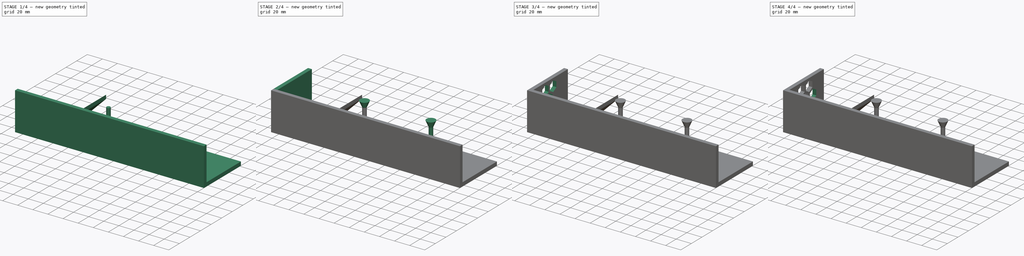
[diagram: build sequence overview — one tinted view per stage of 4, left to right]
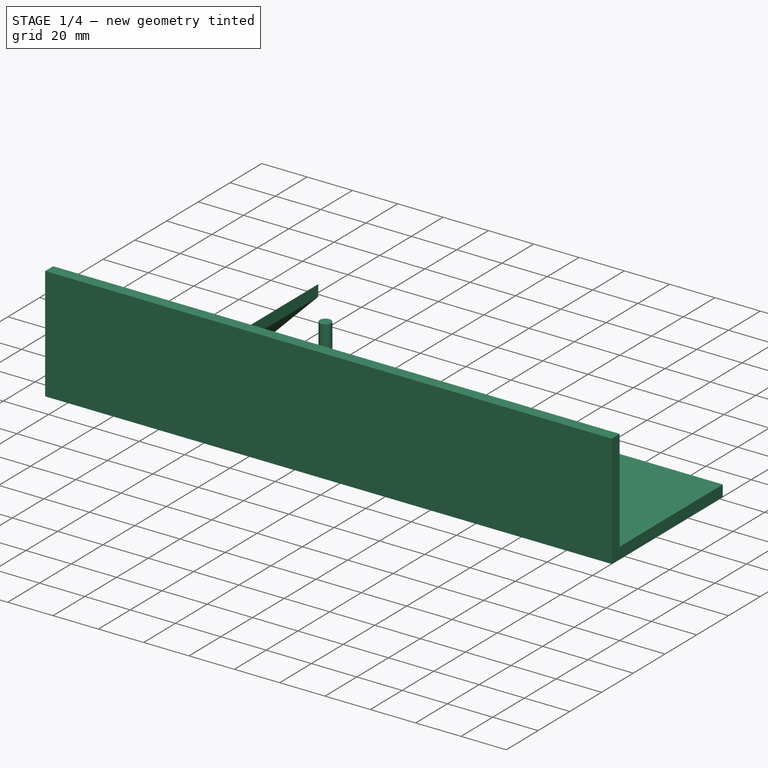
[diagram: stage 1 of 4 — iso view after this stage's code; geometry added in this stage tinted green]
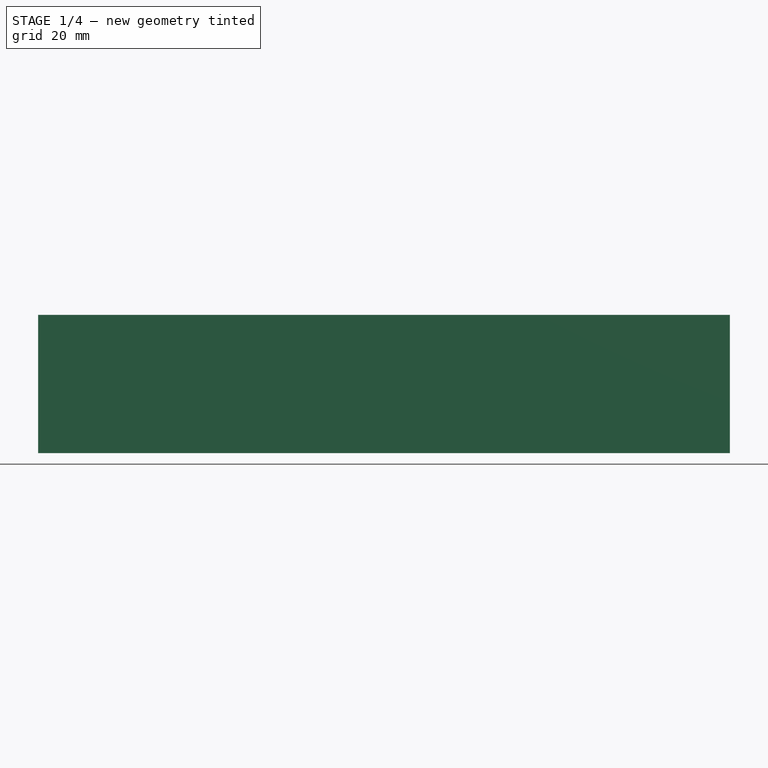
[diagram: stage 1 of 4 — front view after this stage's code; geometry added in this stage tinted green]
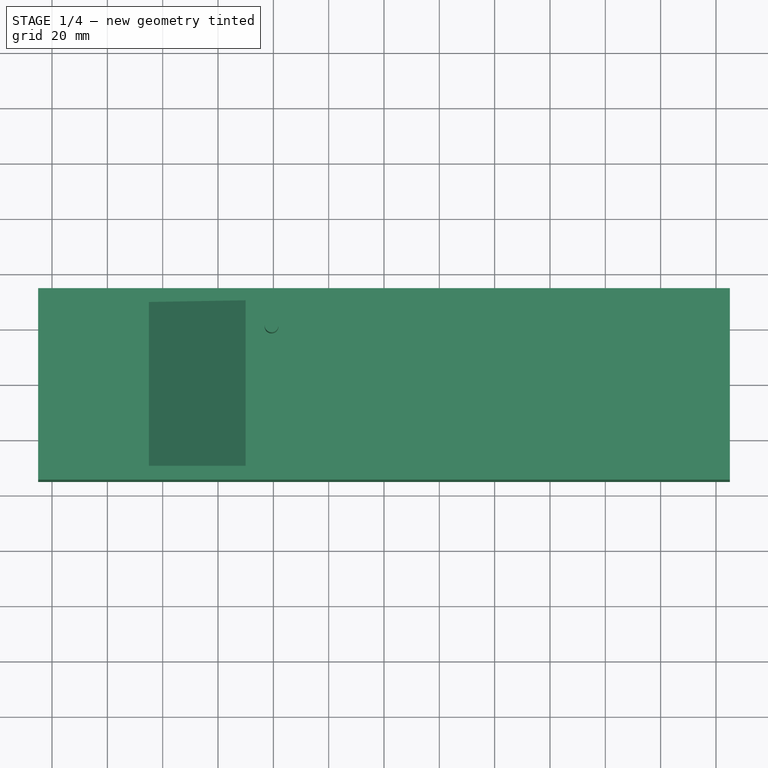
[diagram: stage 1 of 4 — top view after this stage's code; geometry added in this stage tinted green]
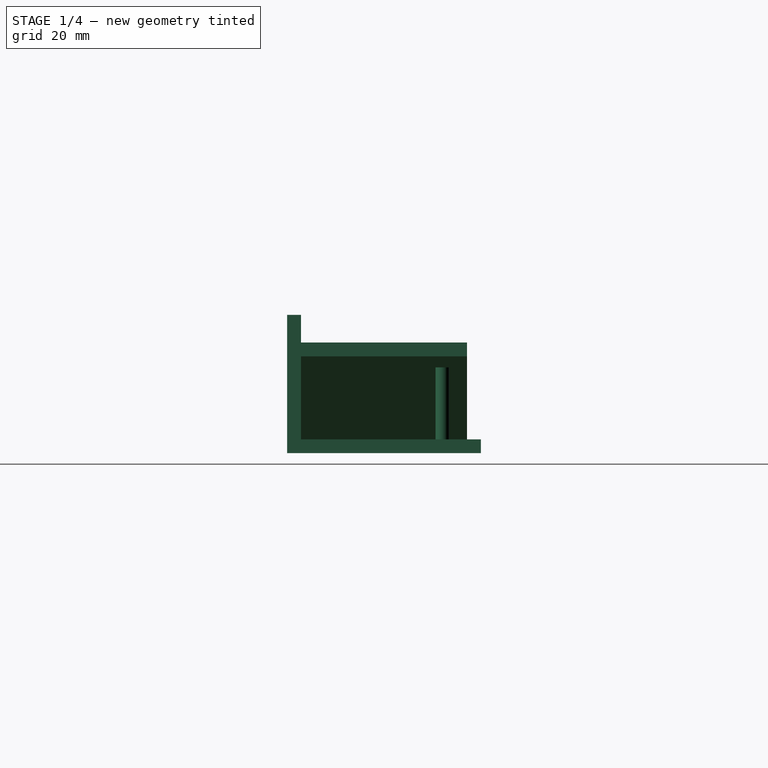
[diagram: stage 1 of 4 — right view after this stage's code; geometry added in this stage tinted green]
FCSTD DOCUMENT  (FreeCAD 0.18.4R)
Label: box_10gig_3dp_mountloft
License: All rights reserved
LicenseURL: http://en.wikipedia.org/wiki/All_rights_reserved
objects: Sketcher::SketchObject×14, PartDesign::Pocket×7, PartDesign::Pad×5, Raytracing::RayFeature×4, App::Part×2, PartDesign::Body×2, PartDesign::LinearPattern×2, App::VRMLObject×1, Part::Feature×1, PartDesign::AdditiveLoft×1, PartDesign::MultiTransform×1, Raytracing::RayProject×1
note: 46 computed .brp shape members not serialized (recipe doc carries the construction recipe); baked Part::Feature solids carry a one-line shape summary decoded from their .brp

FEATURE [App::VRMLObject] multi_smtpa_linear  label="multi-smtpa_linear"
  Placement = pos=(-146.63,77.1112,39.7191) rot=(0,0,1;0rad)
FEATURE [Sketcher::SketchObject] CopySketch
  sketch-geometry (4):
    g0: LineSegment StartX=-125 StartY=35 StartZ=0 EndX=125 EndY=35 EndZ=0
    g1: LineSegment StartX=125 StartY=35 StartZ=0 EndX=125 EndY=-35 EndZ=0
    g2: LineSegment StartX=125 StartY=-35 StartZ=0 EndX=-125 EndY=-35 EndZ=0
    g3: LineSegment StartX=-125 StartY=-35 StartZ=0 EndX=-125 EndY=35 EndZ=0
  constraints (10):
    c: Horizontal(g0)
    c: Vertical(g1)
    c: DistanceX(g3,g1) = 250
    c: Symmetric(g3,g1,g-2)
    c: Symmetric(g0,g3,g-1)
    c: Coincident(g2,g3)
    c: Coincident(g1,g2)
    c: Coincident(g3,g0)
    c: Coincident(g1,g0)
    c: DistanceY(g1,g1) = 70
FEATURE [Raytracing::RayFeature] Body001_View
  Result = <blob: 25648 chars omitted>
  Transparency = 0
FEATURE [Raytracing::RayFeature] Body002_View
  Result = <blob: 18890 chars omitted>
  Transparency = 0
FEATURE [Raytracing::RayFeature] Body003_View
  Result = <blob: 23214 chars omitted>
  Transparency = 0
FEATURE [Part::Feature] Part__Feature  label="˟°1"
  Placement = pos=(-104.545,8.03953e-07,27.6303) rot=(0,1,0;1.5708rad)
  shape: bbox 28.2 x 41.27 x 41.27 mm, 170 faces (baked)
FEATURE [App::Part] _0X28P3_FRAME_HOOK  label="fan"
  Group = -> [Part__Feature]
  Origin = -> Origin004
FEATURE [PartDesign::Pad] Pad  label="base"
  Length = 5
  Length2 = 100
  Profile = -> CopySketch
  Type = 0
FEATURE [Sketcher::SketchObject] Sketch001
  ExternalGeometry = -> [Pad]
  MapMode = 5
  Placement = pos=(0,0,5) rot=(0,0,1;0rad)
  Support = -> [Pad]
  sketch-geometry (4):
    g0: LineSegment StartX=-125 StartY=-35 StartZ=0 EndX=125 EndY=-35 EndZ=0
    g1: LineSegment StartX=125 StartY=-35 StartZ=0 EndX=125 EndY=-30 EndZ=0
    g2: LineSegment StartX=125 StartY=-30 StartZ=0 EndX=-125 EndY=-30 EndZ=0
    g3: LineSegment StartX=-125 StartY=-30 StartZ=0 EndX=-125 EndY=-35 EndZ=0
  constraints (11):
    c: Coincident(g0,g1)
    c: Coincident(g1,g2)
    c: Coincident(g2,g3)
    c: Coincident(g3,g0)
    c: Horizontal(g0)
    c: Horizontal(g2)
    c: Vertical(g1)
    c: Vertical(g3)
    c: Coincident(g0,g-4)
    c: PointOnObject(g1,g-5)
    c: DistanceY(g3,g3) = 5
FEATURE [PartDesign::Pad] Pad003  label="side_wall"
  BaseFeature = -> Pad
  Length = 45
  Length2 = 100
  Profile = -> Sketch001
  Type = 0
FEATURE [Sketcher::SketchObject] Sketch
  MapMode = 5
  Support = -> [XY_Plane]
  sketch-geometry (4):
    g0: LineSegment StartX=-125 StartY=35 StartZ=0 EndX=125 EndY=35 EndZ=0
    g1: LineSegment StartX=125 StartY=35 StartZ=0 EndX=125 EndY=30 EndZ=0
    g2: LineSegment StartX=125 StartY=30 StartZ=0 EndX=-125 EndY=30 EndZ=0
    g3: LineSegment StartX=-125 StartY=30 StartZ=0 EndX=-125 EndY=35 EndZ=0
  constraints (11):
    c: Coincident(g0,g1)
    c: Coincident(g1,g2)
    c: Coincident(g2,g3)
    c: Coincident(g3,g0)
    c: Horizontal(g0)
    c: Vertical(g1)
    c: Vertical(g3)
    c: DistanceY(g1,g1) = 5
    c: DistanceY(g-1,g0) = 35
    c: DistanceX(g2,g-1) = 125
    c: Symmetric(g2,g1,g-2)
FEATURE [PartDesign::Body] Body001  label="lid"
  Group = -> [Sketch]
  Origin = -> Origin
FEATURE [Sketcher::SketchObject] Sketch002
  MapMode = 5
  Placement = pos=(0,-30,0) rot=(0,0.707107,0.707107;3.14159rad)
  Support = -> [Pad003]
  sketch-geometry (4):
    g0: LineSegment StartX=50 StartY=40 StartZ=0 EndX=50 EndY=35 EndZ=0
    g1: LineSegment StartX=50 StartY=35 StartZ=0 EndX=80 EndY=5 EndZ=0
    g2: LineSegment StartX=80 StartY=5 StartZ=0 EndX=85 EndY=5 EndZ=0
    g3: LineSegment StartX=85 StartY=5 StartZ=0 EndX=50 EndY=40 EndZ=0
  constraints (12):
    c: Vertical(g0)
    c: Coincident(g0,g1)
    c: Coincident(g1,g2)
    c: Horizontal(g2)
    c: Coincident(g2,g3)
    c: Coincident(g3,g0)
    c: Equal(g2,g0)
    c: DistanceY(g-1,g1) = 5
    c: Angle(g3,g-1) = 0.785398
    c: DistanceY(g0,g0) = 5
    c: DistanceX(g-1,g1) = 80
    c: DistanceX(g-1,g0) = 50
FEATURE [PartDesign::Pad] Pad004  label="air_guide"
  BaseFeature = -> Pad003
  Length = 60
  Length2 = 100
  Profile = -> Sketch002
  Type = 0
FEATURE [Sketcher::SketchObject] Sketch003
  MapMode = 5
  Placement = pos=(0,0,5) rot=(0,0,1;0rad)
  Support = -> [Pad004]
  sketch-geometry (1):
    g0: Circle CenterX=-40.6316 CenterY=21.1 CenterZ=0 NormalX=0 NormalY=0 NormalZ=1 AngleXU=0 Radius=2.5
  constraints (2):
    c: Diameter(g0) = 5
    c: DistanceY(g-1,g0) = 21.1
FEATURE [PartDesign::Pad] Pad005  label="mount_post"
  BaseFeature = -> Pad004
  Length = 26
  Length2 = 100
  Profile = -> Sketch003
  Type = 0
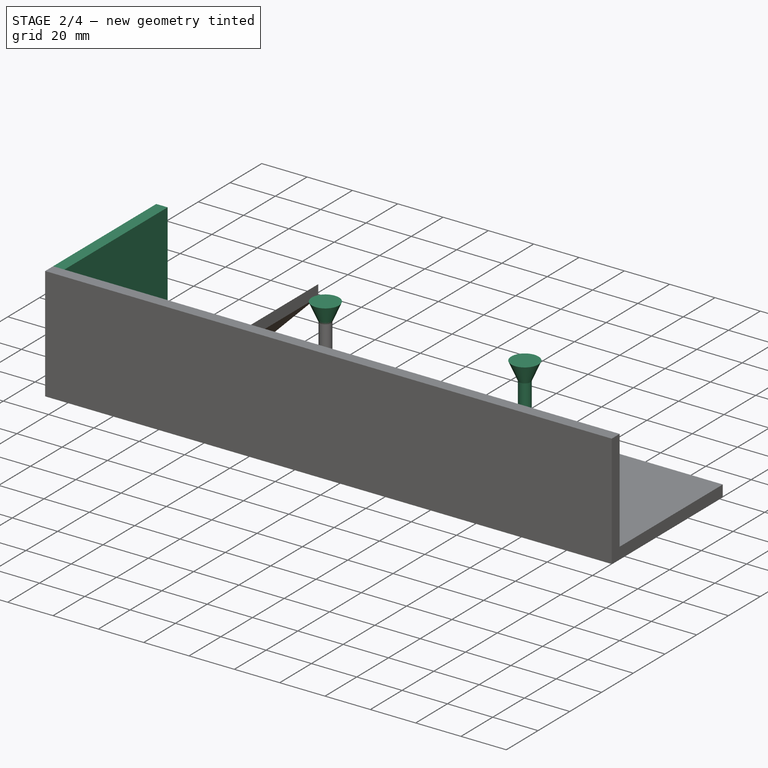
[diagram: stage 2 of 4 — iso view after this stage's code; geometry added in this stage tinted green]
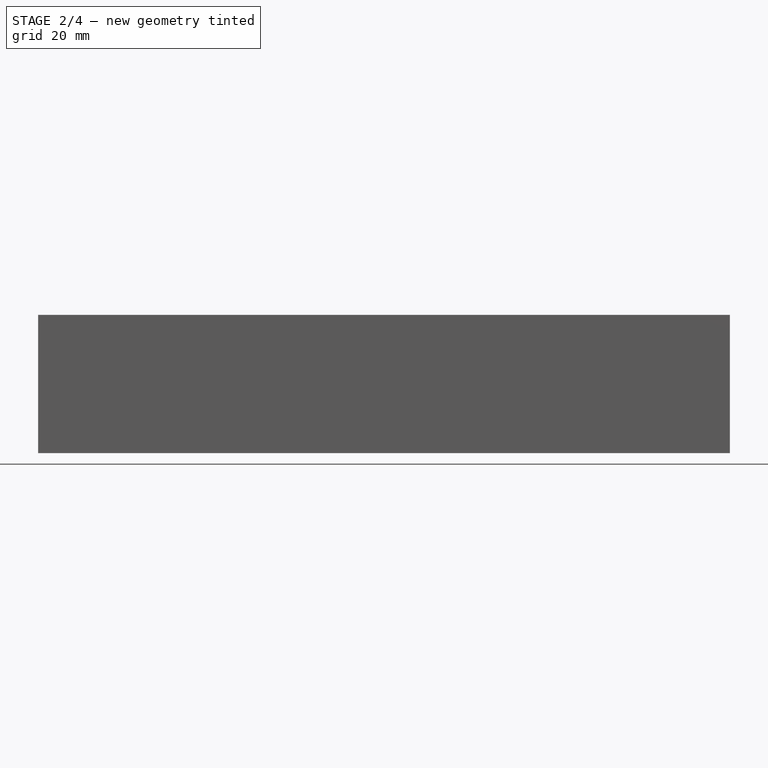
[diagram: stage 2 of 4 — front view after this stage's code; geometry added in this stage tinted green]
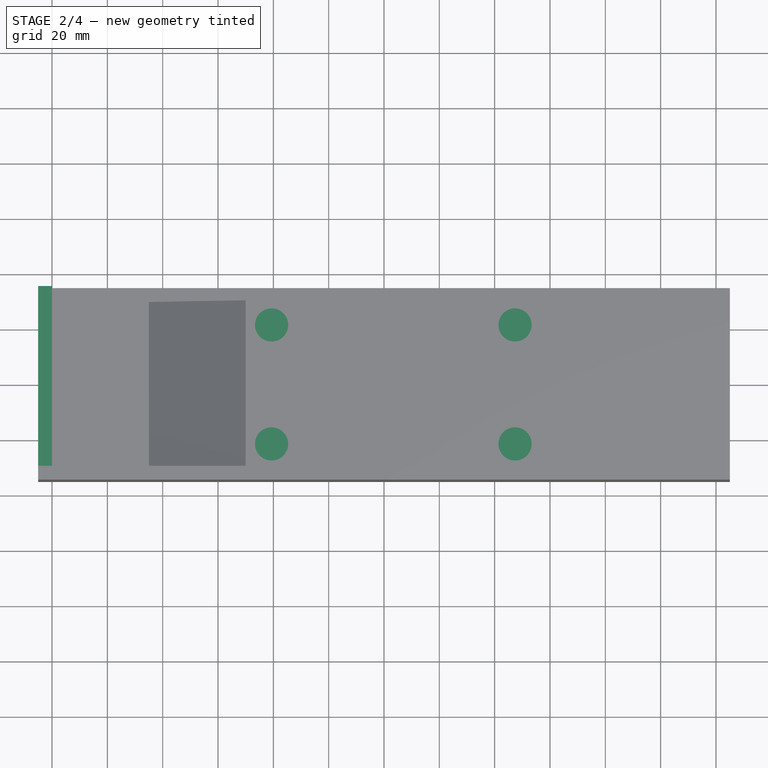
[diagram: stage 2 of 4 — top view after this stage's code; geometry added in this stage tinted green]
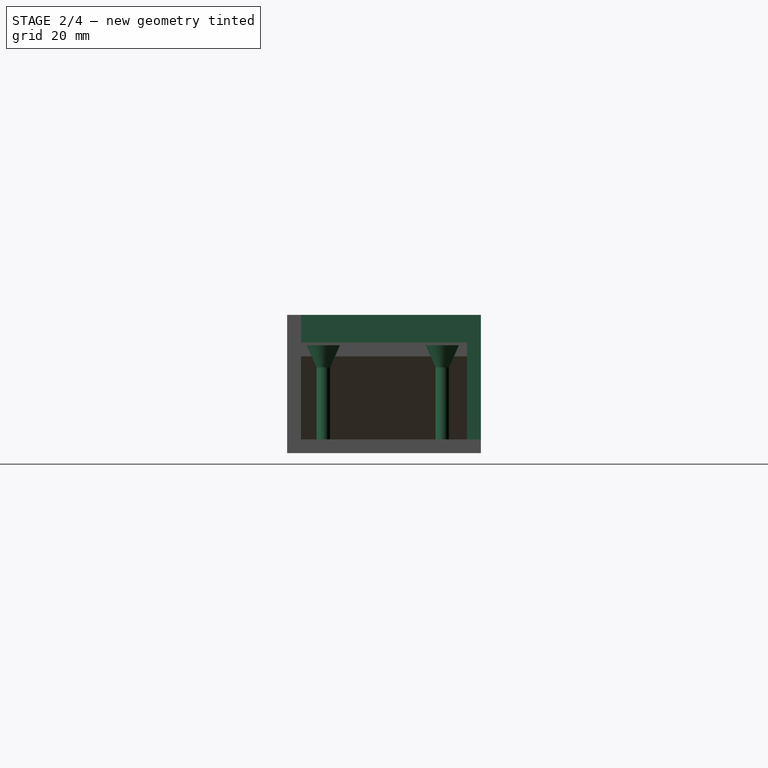
[diagram: stage 2 of 4 — right view after this stage's code; geometry added in this stage tinted green]
FEATURE [Sketcher::SketchObject] Sketch004
  AttachmentOffset = pos=(0,0,8) rot=(0,0,1;0rad)
  ExternalGeometry = -> [Pad005]
  MapMode = 5
  Placement = pos=(0,0,39) rot=(0,0,1;0rad)
  Support = -> [Pad005]
  sketch-geometry (1):
    g0: Circle CenterX=-40.6316 CenterY=21.1 CenterZ=0 NormalX=0 NormalY=0 NormalZ=1 AngleXU=0 Radius=6
  constraints (2):
    c: Diameter(g0) = 12
    c: Coincident(g0,g-3)
FEATURE [PartDesign::AdditiveLoft] AdditiveLoft  label="mount_loft"
  BaseFeature = -> Pad005
  Closed = true
  Profile = -> Pad005 [Face17]
  Ruled = true
  Sections = -> [Sketch004]
FEATURE [PartDesign::LinearPattern] LinearPattern
  Direction = -> Sketch003 [H_Axis]
  Length = 88
  Occurrences = 2
FEATURE [PartDesign::LinearPattern] LinearPattern001
  Direction = -> Sketch003 [V_Axis]
  Length = 43
  Occurrences = 2
  Reversed = true
FEATURE [PartDesign::MultiTransform] MultiTransform  label="mount_loft_dupe"
  BaseFeature = -> AdditiveLoft
  Originals = -> [Pad005,AdditiveLoft]
  Transformations = -> [LinearPattern,LinearPattern001]
FEATURE [Sketcher::SketchObject] Sketch005  label="fan_mount"
  ExternalGeometry = -> [MultiTransform]
  MapMode = 5
  Placement = pos=(0,0,5) rot=(0,0,1;0rad)
  Support = -> [MultiTransform]
  sketch-geometry (4):
    g0: LineSegment StartX=-125 StartY=35 StartZ=0 EndX=-120 EndY=35 EndZ=0
    g1: LineSegment StartX=-120 StartY=35 StartZ=0 EndX=-120 EndY=-30 EndZ=0
    g2: LineSegment StartX=-120 StartY=-30 StartZ=0 EndX=-125 EndY=-30 EndZ=0
    g3: LineSegment StartX=-125 StartY=-30 StartZ=0 EndX=-125 EndY=35 EndZ=0
  constraints (11):
    c: Coincident(g0,g1)
    c: Coincident(g1,g2)
    c: Coincident(g2,g3)
    c: Coincident(g3,g0)
    c: Horizontal(g0)
    c: Horizontal(g2)
    c: Vertical(g1)
    c: Vertical(g3)
    c: Coincident(g0,g-4)
    c: PointOnObject(g1,g-5)
    c: DistanceX(g0,g0) = 5
FEATURE [PartDesign::Pad] Pad006  label="fan_bracket"
  BaseFeature = -> MultiTransform
  Length = 45
  Length2 = 100
  Profile = -> Sketch005
  Type = 0
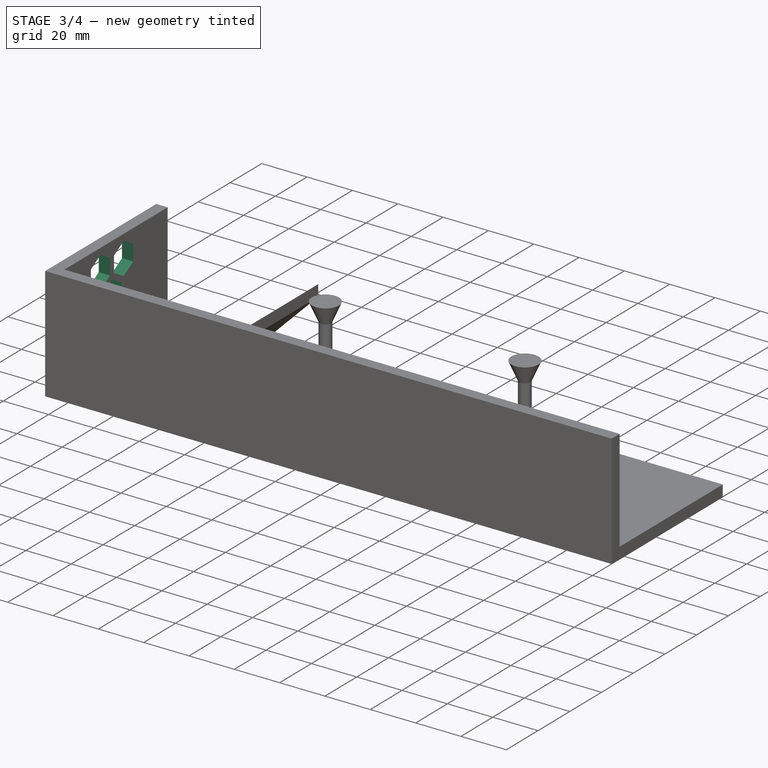
[diagram: stage 3 of 4 — iso view after this stage's code; geometry added in this stage tinted green]
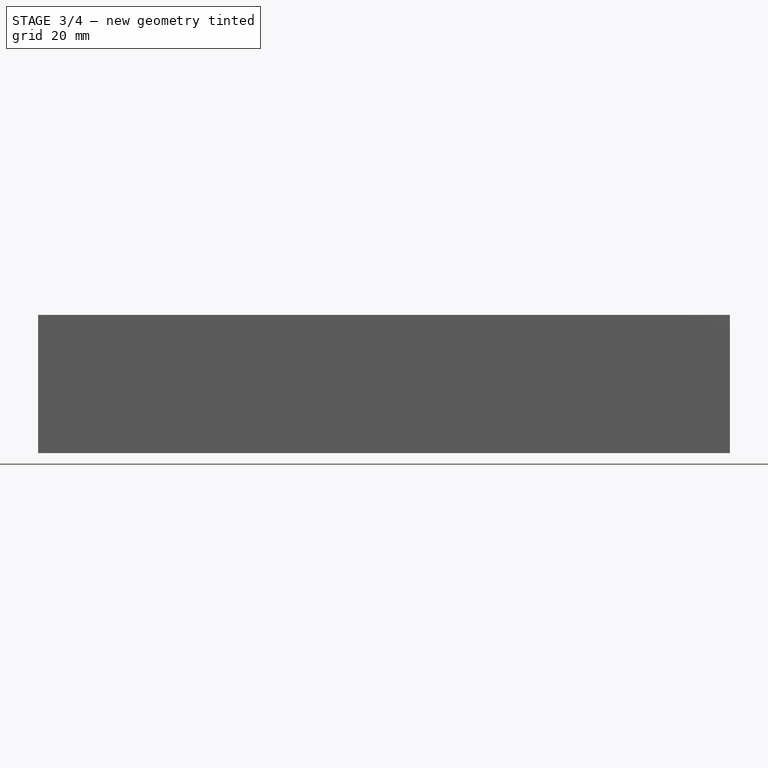
[diagram: stage 3 of 4 — front view after this stage's code; geometry added in this stage tinted green]
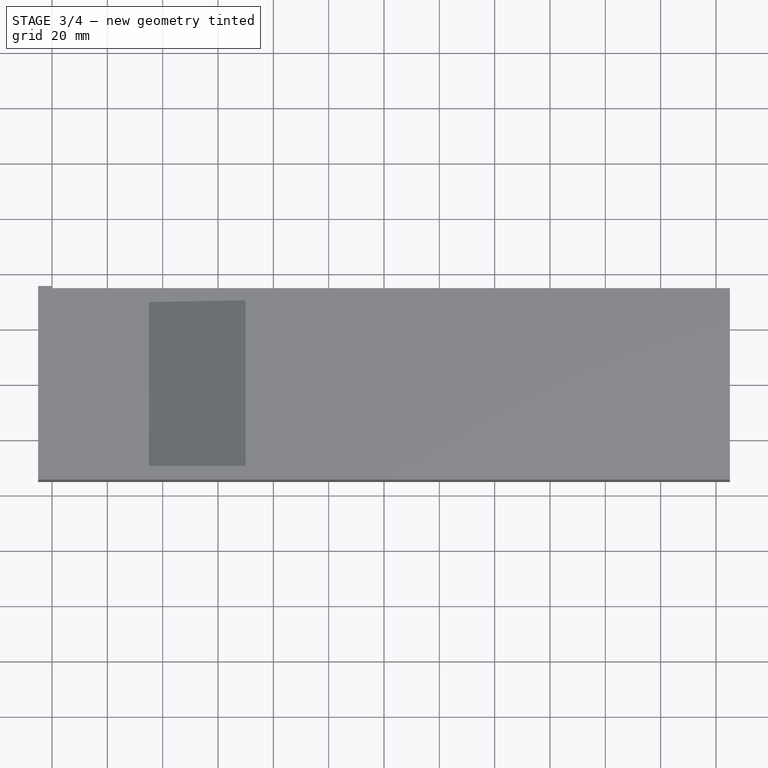
[diagram: stage 3 of 4 — top view after this stage's code; geometry added in this stage tinted green]
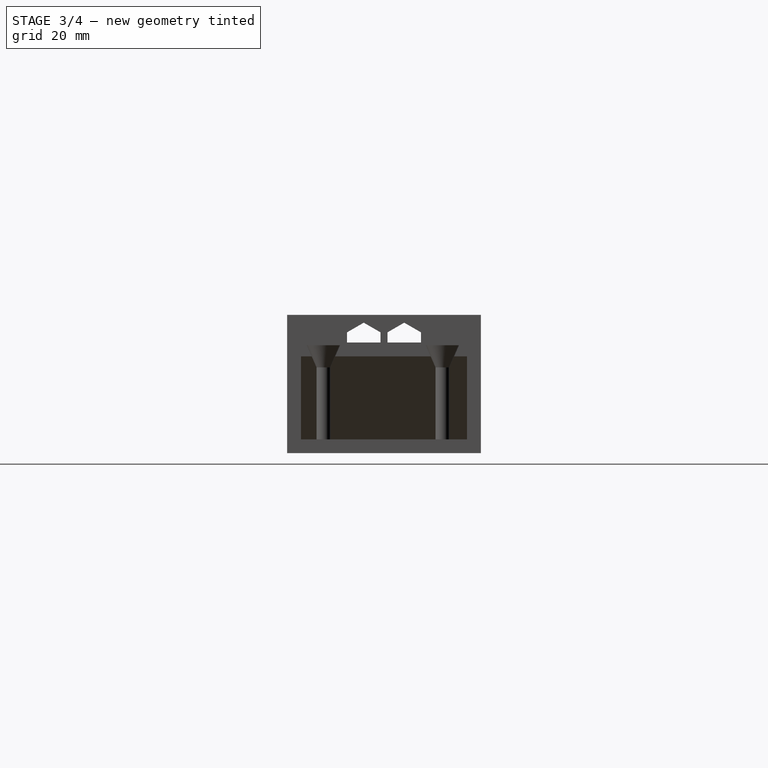
[diagram: stage 3 of 4 — right view after this stage's code; geometry added in this stage tinted green]
FEATURE [Sketcher::SketchObject] Sketch006
  ExternalGeometry = -> [Pad006]
  MapMode = 5
  Placement = pos=(-125,0,0) rot=(0.57735,-0.57735,-0.57735;2.0944rad)
  Support = -> [Pad006]
  sketch-geometry (8):
    g0: LineSegment [constr] StartX=35 StartY=27.5 StartZ=0 EndX=-30 EndY=27.5 EndZ=0
    g1: LineSegment StartX=0 StartY=34.5 StartZ=0 EndX=-6.06218 EndY=31 EndZ=0
    g2: LineSegment StartX=-6.06218 StartY=31 StartZ=0 EndX=-6.06218 EndY=24 EndZ=0
    g3: LineSegment StartX=-6.06218 StartY=24 StartZ=0 EndX=-3.56559e-11 EndY=20.5 EndZ=0
    g4: LineSegment StartX=-3.56559e-11 StartY=20.5 StartZ=0 EndX=6.06218 EndY=24 EndZ=0
    g5: LineSegment StartX=6.06218 StartY=24 StartZ=0 EndX=6.06218 EndY=31 EndZ=0
    g6: LineSegment StartX=6.06218 StartY=31 StartZ=0 EndX=0 EndY=34.5 EndZ=0
    g7: Circle [constr] CenterX=0 CenterY=27.5 CenterZ=0 NormalX=0 NormalY=0 NormalZ=1 AngleXU=0 Radius=7
  constraints (20):
    c: Symmetric(g-3,g-3,g0)
    c: PointOnObject(g0,g-3)
    c: Equal(g0,g-4)
    c: Coincident(g1,g2)
    c: Coincident(g2,g3)
    c: Coincident(g3,g4)
    c: Coincident(g4,g5)
    c: Coincident(g5,g6)
    c: Coincident(g6,g1)
    c: Equal(g1, g2-g6) x5
    c: PointOnObject(g1,g7)
    c: PointOnObject(g2,g7)
    c: PointOnObject(g3,g7)
    c: PointOnObject(g4,g7)
    c: PointOnObject(g5,g7)
    c: PointOnObject(g6,g7)
    c: PointOnObject(g6,g-2)
    c: Diameter(g7) = 14
    c: PointOnObject(g7,g0)
    c: PointOnObject(g7,g-2)
FEATURE [PartDesign::Pocket] Pocket  label="guard_centre"
  BaseFeature = -> Pad006
  Length = 5
  Length2 = 100
  Profile = -> Sketch006
  Type = 2
FEATURE [Sketcher::SketchObject] Sketch007
  ExternalGeometry = -> [Pocket]
  MapMode = 5
  Placement = pos=(-125,0,0) rot=(0.57735,-0.57735,-0.57735;2.0944rad)
  Support = -> [Pocket]
  sketch-geometry (9):
    g0: LineSegment StartX=13.3744 StartY=36.6651 StartZ=0 EndX=13.3744 EndY=43.6651 EndZ=0
    g1: LineSegment StartX=13.3744 StartY=43.6651 StartZ=0 EndX=7.31218 EndY=47.1651 EndZ=0
    g2: LineSegment StartX=7.31218 StartY=47.1651 StartZ=0 EndX=1.25 EndY=43.6651 EndZ=0
    g3: LineSegment StartX=1.25 StartY=43.6651 StartZ=0 EndX=1.25 EndY=36.6651 EndZ=0
    g4: LineSegment StartX=1.25 StartY=36.6651 StartZ=0 EndX=7.31218 EndY=33.1651 EndZ=0
    g5: LineSegment StartX=7.31218 StartY=33.1651 StartZ=0 EndX=13.3744 EndY=36.6651 EndZ=0
    g6: Circle [constr] CenterX=7.31218 CenterY=40.1651 CenterZ=0 NormalX=0 NormalY=0 NormalZ=1 AngleXU=0 Radius=7
    g7: LineSegment [constr] StartX=7.31218 StartY=33.1651 StartZ=0 EndX=6.06218 EndY=31 EndZ=0
    g8: LineSegment [constr] StartX=1.25 StartY=36.6651 StartZ=0 EndX=2e-16 EndY=34.5 EndZ=0
  constraints (21):
    c: Coincident(g0,g1)
    c: Coincident(g1,g2)
    c: Coincident(g2,g3)
    c: Coincident(g3,g4)
    c: Coincident(g4,g5)
    c: Coincident(g5,g0)
    c: Equal(g0, g1-g5) x5
    c: PointOnObject(g0,g6)
    c: PointOnObject(g1,g6)
    c: PointOnObject(g2,g6)
    c: PointOnObject(g3,g6)
    c: PointOnObject(g4,g6)
    c: PointOnObject(g5,g6)
    c: Coincident(g7,g4)
    c: Coincident(g7,g-3)
    c: Coincident(g8,g3)
    c: Coincident(g8,g-3)
    c: Equal(g8,g7)
    c: Angle(g-3,g8) = 1.5708
    c: Equal(g4,g-3)
    c: Distance(g7) = 2.5
FEATURE [PartDesign::Pocket] Pocket001  label="guard_hex1"
  BaseFeature = -> Pocket
  Length = 5
  Length2 = 100
  Profile = -> Sketch007
  Type = 2
FEATURE [Sketcher::SketchObject] Sketch008
  ExternalGeometry = -> [Pocket001]
  MapMode = 5
  Placement = pos=(-125,0,0) rot=(0.57735,-0.57735,-0.57735;2.0944rad)
  Support = -> [Pocket001]
  sketch-geometry (9):
    g0: LineSegment StartX=-1.25 StartY=36.6651 StartZ=0 EndX=-1.25 EndY=43.6651 EndZ=0
    g1: LineSegment StartX=-1.25 StartY=43.6651 StartZ=0 EndX=-7.31218 EndY=47.1651 EndZ=0
    g2: LineSegment StartX=-7.31218 StartY=47.1651 StartZ=0 EndX=-13.3744 EndY=43.6651 EndZ=0
    g3: LineSegment StartX=-13.3744 StartY=43.6651 StartZ=0 EndX=-13.3744 EndY=36.6651 EndZ=0
    g4: LineSegment StartX=-13.3744 StartY=36.6651 StartZ=0 EndX=-7.31218 EndY=33.1651 EndZ=0
    g5: LineSegment StartX=-7.31218 StartY=33.1651 StartZ=0 EndX=-1.25 EndY=36.6651 EndZ=0
    g6: Circle [constr] CenterX=-7.31218 CenterY=40.1651 CenterZ=0 NormalX=0 NormalY=0 NormalZ=1 AngleXU=0 Radius=7
    g7: LineSegment [constr] StartX=-6.06218 StartY=31 StartZ=0 EndX=-7.31218 EndY=33.1651 EndZ=0
    g8: LineSegment [constr] StartX=0 StartY=34.5 StartZ=0 EndX=-1.25 EndY=36.6651 EndZ=0
  constraints (21):
    c: Coincident(g0,g1)
    c: Coincident(g1,g2)
    c: Coincident(g2,g3)
    c: Coincident(g3,g4)
    c: Coincident(g4,g5)
    c: Coincident(g5,g0)
    c: Equal(g0, g1-g5) x5
    c: PointOnObject(g0,g6)
    c: PointOnObject(g1,g6)
    c: PointOnObject(g2,g6)
    c: PointOnObject(g3,g6)
    c: PointOnObject(g4,g6)
    c: PointOnObject(g5,g6)
    c: Coincident(g7,g-3)
    c: Coincident(g7,g4)
    c: Coincident(g8,g-3)
    c: Coincident(g8,g0)
    c: Angle(g-3,g7) = 1.5708
    c: Parallel(g8,g7)
    c: Equal(g7,g8)
    c: Distance(g7) = 2.5
FEATURE [PartDesign::Pocket] Pocket002  label="guard_hex2"
  BaseFeature = -> Pocket001
  Length = 5
  Length2 = 100
  Profile = -> Sketch008
  Type = 2
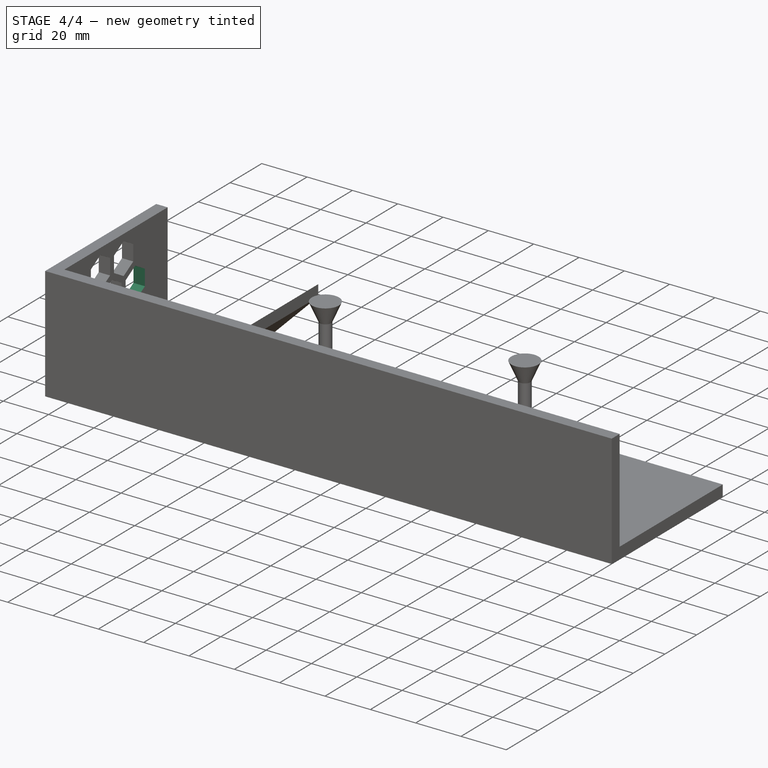
[diagram: stage 4 of 4 — iso view after this stage's code; geometry added in this stage tinted green]
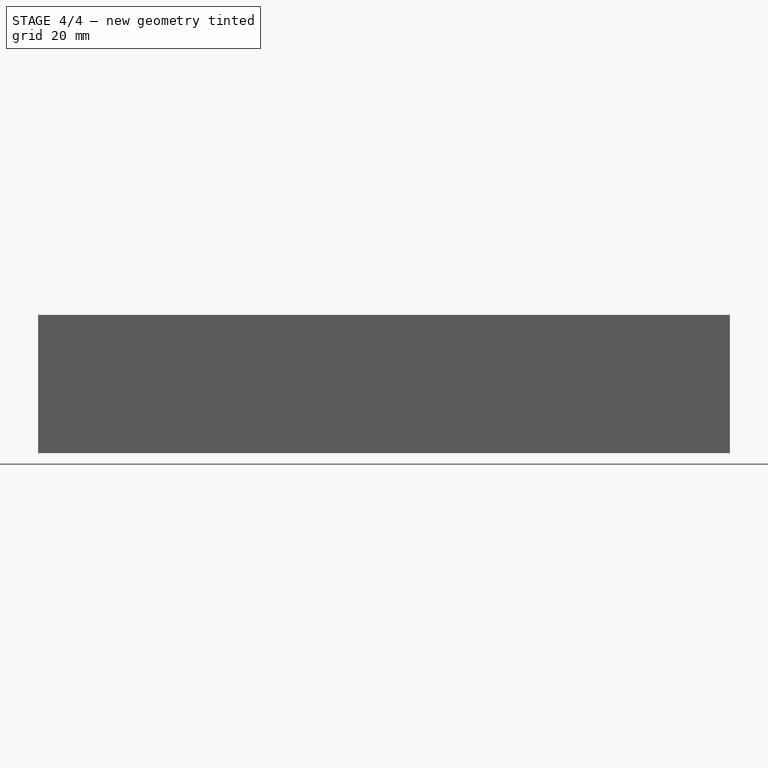
[diagram: stage 4 of 4 — front view after this stage's code; geometry added in this stage tinted green]
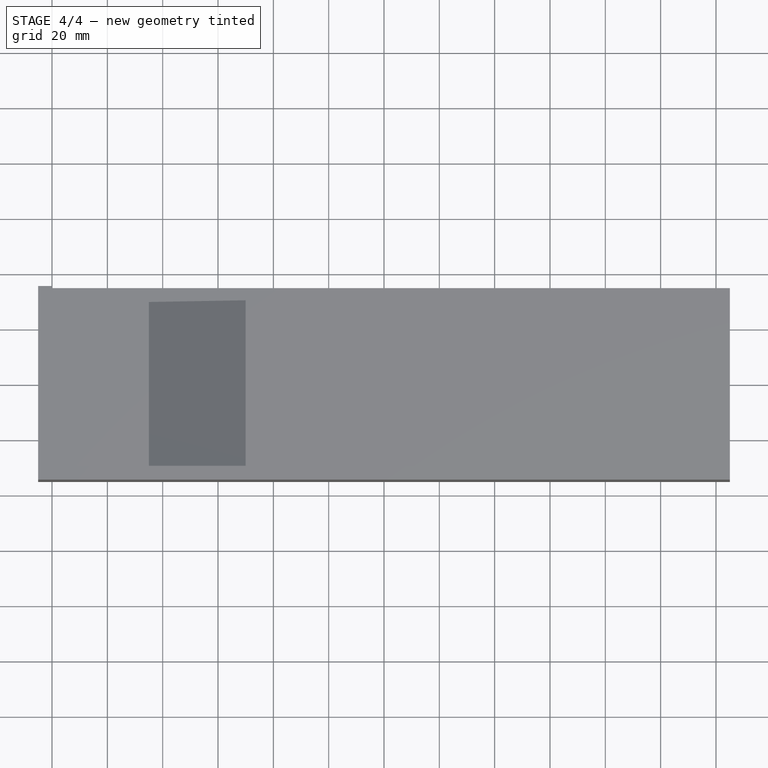
[diagram: stage 4 of 4 — top view after this stage's code; geometry added in this stage tinted green]
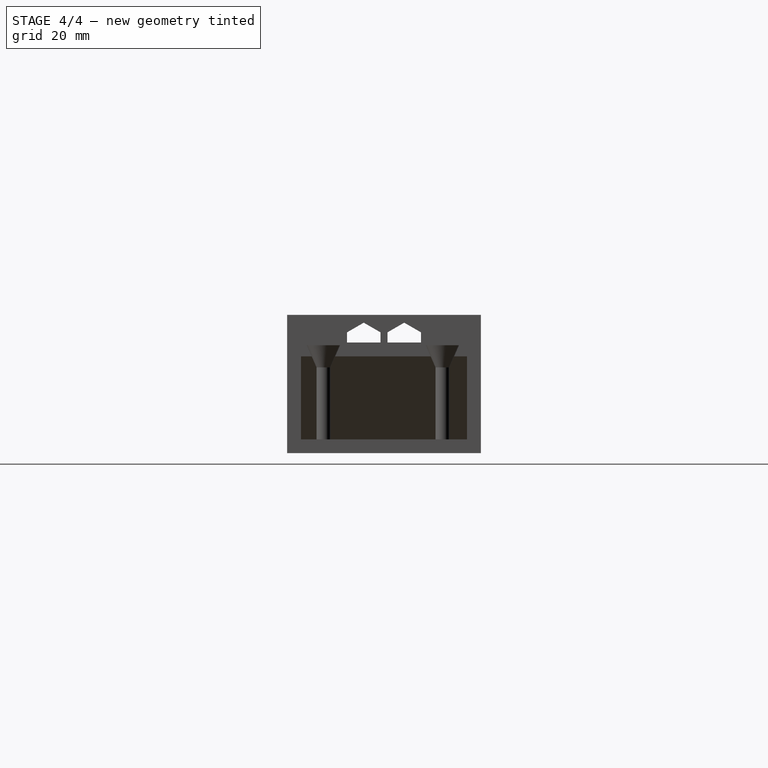
[diagram: stage 4 of 4 — right view after this stage's code; geometry added in this stage tinted green]
FEATURE [Sketcher::SketchObject] Sketch009
  ExternalGeometry = -> [Pocket002]
  MapMode = 5
  Placement = pos=(-125,0,0) rot=(0.57735,-0.57735,-0.57735;2.0944rad)
  Support = -> [Pocket002]
  sketch-geometry (9):
    g0: LineSegment StartX=-14.6244 StartY=20.5 StartZ=0 EndX=-8.56218 EndY=24 EndZ=0
    g1: LineSegment StartX=-8.56218 StartY=24 StartZ=0 EndX=-8.56218 EndY=31 EndZ=0
    g2: LineSegment StartX=-8.56218 StartY=31 StartZ=0 EndX=-14.6244 EndY=34.5 EndZ=0
    g3: LineSegment StartX=-14.6244 StartY=34.5 StartZ=0 EndX=-20.6865 EndY=31 EndZ=0
    g4: LineSegment StartX=-20.6865 StartY=31 StartZ=0 EndX=-20.6865 EndY=24 EndZ=0
    g5: LineSegment StartX=-20.6865 StartY=24 StartZ=0 EndX=-14.6244 EndY=20.5 EndZ=0
    g6: Circle [constr] CenterX=-14.6244 CenterY=27.5 CenterZ=0 NormalX=0 NormalY=0 NormalZ=1 AngleXU=0 Radius=7
    g7: LineSegment [constr] StartX=-6.06218 StartY=31 StartZ=0 EndX=-8.56218 EndY=31 EndZ=0
    g8: LineSegment [constr] StartX=-6.06218 StartY=24 StartZ=0 EndX=-8.56218 EndY=24 EndZ=0
  constraints (21):
    c: Coincident(g0,g1)
    c: Coincident(g1,g2)
    c: Coincident(g2,g3)
    c: Coincident(g3,g4)
    c: Coincident(g4,g5)
    c: Coincident(g5,g0)
    c: Equal(g0, g1-g5) x5
    c: PointOnObject(g0,g6)
    c: PointOnObject(g1,g6)
    c: PointOnObject(g2,g6)
    c: PointOnObject(g3,g6)
    c: PointOnObject(g4,g6)
    c: PointOnObject(g5,g6)
    c: Coincident(g7,g-3)
    c: Coincident(g7,g1)
    c: Horizontal(g7)
    c: Coincident(g8,g-3)
    c: Coincident(g8,g0)
    c: Horizontal(g8)
    c: Equal(g7,g8)
    c: DistanceX(g7,g7) = 2.5
FEATURE [PartDesign::Pocket] Pocket003  label="guard_hex3"
  BaseFeature = -> Pocket002
  Length = 5
  Length2 = 100
  Profile = -> Sketch009
  Type = 2
FEATURE [Sketcher::SketchObject] Sketch010
  ExternalGeometry = -> [Pocket003]
  MapMode = 5
  Placement = pos=(-125,0,0) rot=(0.57735,-0.57735,-0.57735;2.0944rad)
  Support = -> [Pocket003]
  sketch-geometry (9):
    g0: LineSegment StartX=20.6865 StartY=24 StartZ=0 EndX=20.6865 EndY=31 EndZ=0
    g1: LineSegment StartX=20.6865 StartY=31 StartZ=0 EndX=14.6244 EndY=34.5 EndZ=0
    g2: LineSegment StartX=14.6244 StartY=34.5 StartZ=0 EndX=8.56218 EndY=31 EndZ=0
    g3: LineSegment StartX=8.56218 StartY=31 StartZ=0 EndX=8.56218 EndY=24 EndZ=0
    g4: LineSegment StartX=8.56218 StartY=24 StartZ=0 EndX=14.6244 EndY=20.5 EndZ=0
    g5: LineSegment StartX=14.6244 StartY=20.5 StartZ=0 EndX=20.6865 EndY=24 EndZ=0
    g6: Circle [constr] CenterX=14.6244 CenterY=27.5 CenterZ=0 NormalX=0 NormalY=0 NormalZ=1 AngleXU=0 Radius=7
    g7: LineSegment [constr] StartX=8.56218 StartY=31 StartZ=0 EndX=6.06218 EndY=31 EndZ=0
    g8: LineSegment [constr] StartX=8.56218 StartY=24 StartZ=0 EndX=6.06218 EndY=24 EndZ=0
  constraints (21):
    c: Coincident(g0,g1)
    c: Coincident(g1,g2)
    c: Coincident(g2,g3)
    c: Coincident(g3,g4)
    c: Coincident(g4,g5)
    c: Coincident(g5,g0)
    c: Equal(g0, g1-g5) x5
    c: PointOnObject(g0,g6)
    c: PointOnObject(g1,g6)
    c: PointOnObject(g2,g6)
    c: PointOnObject(g3,g6)
    c: PointOnObject(g4,g6)
    c: PointOnObject(g5,g6)
    c: Coincident(g7,g2)
    c: Coincident(g7,g-3)
    c: Coincident(g8,g3)
    c: Coincident(g8,g-3)
    c: Horizontal(g8)
    c: Horizontal(g7)
    c: Equal(g7,g8)
    c: DistanceX(g7,g7) = 2.5
FEATURE [PartDesign::Pocket] Pocket004  label="guard_hex4"
  BaseFeature = -> Pocket003
  Length = 5
  Length2 = 100
  Profile = -> Sketch010
  Type = 2
FEATURE [Sketcher::SketchObject] Sketch011
  ExternalGeometry = -> [Pocket004]
  MapMode = 5
  Placement = pos=(-125,0,0) rot=(0.57735,-0.57735,-0.57735;2.0944rad)
  Support = -> [Pocket004]
  sketch-geometry (9):
    g0: LineSegment StartX=-1.25 StartY=11.3349 StartZ=0 EndX=-1.25 EndY=18.3349 EndZ=0
    g1: LineSegment StartX=-1.25 StartY=18.3349 StartZ=0 EndX=-7.31218 EndY=21.8349 EndZ=0
    g2: LineSegment StartX=-7.31218 StartY=21.8349 StartZ=0 EndX=-13.3744 EndY=18.3349 EndZ=0
    g3: LineSegment StartX=-13.3744 StartY=18.3349 StartZ=0 EndX=-13.3744 EndY=11.3349 EndZ=0
    g4: LineSegment StartX=-13.3744 StartY=11.3349 StartZ=0 EndX=-7.31218 EndY=7.83494 EndZ=0
    g5: LineSegment StartX=-7.31218 StartY=7.83494 StartZ=0 EndX=-1.25 EndY=11.3349 EndZ=0
    g6: Circle [constr] CenterX=-7.31218 CenterY=14.8349 CenterZ=0 NormalX=0 NormalY=0 NormalZ=1 AngleXU=0 Radius=7
    g7: LineSegment [constr] StartX=-6.06218 StartY=24 StartZ=0 EndX=-7.31218 EndY=21.8349 EndZ=0
    g8: LineSegment [constr] StartX=-1.25 StartY=18.3349 StartZ=0 EndX=-3.56559e-11 EndY=20.5 EndZ=0
  constraints (21):
    c: Coincident(g0,g1)
    c: Coincident(g1,g2)
    c: Coincident(g2,g3)
    c: Coincident(g3,g4)
    c: Coincident(g4,g5)
    c: Coincident(g5,g0)
    c: Equal(g0, g1-g5) x5
    c: PointOnObject(g0,g6)
    c: PointOnObject(g1,g6)
    c: PointOnObject(g2,g6)
    c: PointOnObject(g3,g6)
    c: PointOnObject(g4,g6)
    c: PointOnObject(g5,g6)
    c: Coincident(g7,g-3)
    c: Coincident(g7,g1)
    c: Coincident(g8,g0)
    c: Coincident(g8,g-3)
    c: Angle(g7,g-3) = 1.5708
    c: Parallel(g8,g7)
    c: Equal(g7,g8)
    c: Distance(g8) = 2.5
FEATURE [PartDesign::Pocket] Pocket005  label="guard_hex5"
  BaseFeature = -> Pocket004
  Length = 5
  Length2 = 100
  Profile = -> Sketch011
  Type = 2
FEATURE [Sketcher::SketchObject] Sketch012
  ExternalGeometry = -> [Pocket005]
  MapMode = 5
  Placement = pos=(-125,0,0) rot=(0.57735,-0.57735,-0.57735;2.0944rad)
  Support = -> [Pocket005]
  sketch-geometry (9):
    g0: LineSegment StartX=13.3744 StartY=18.3349 StartZ=0 EndX=7.31218 EndY=21.8349 EndZ=0
    g1: LineSegment StartX=7.31218 StartY=21.8349 StartZ=0 EndX=1.25 EndY=18.3349 EndZ=0
    g2: LineSegment StartX=1.25 StartY=18.3349 StartZ=0 EndX=1.25 EndY=11.3349 EndZ=0
    g3: LineSegment StartX=1.25 StartY=11.3349 StartZ=0 EndX=7.31218 EndY=7.83494 EndZ=0
    g4: LineSegment StartX=7.31218 StartY=7.83494 StartZ=0 EndX=13.3744 EndY=11.3349 EndZ=0
    g5: LineSegment StartX=13.3744 StartY=11.3349 StartZ=0 EndX=13.3744 EndY=18.3349 EndZ=0
    g6: Circle [constr] CenterX=7.31218 CenterY=14.8349 CenterZ=0 NormalX=0 NormalY=0 NormalZ=1 AngleXU=0 Radius=7
    g7: LineSegment [constr] StartX=7.31218 StartY=21.8349 StartZ=0 EndX=6.06218 EndY=24 EndZ=0
    g8: LineSegment [constr] StartX=1.25 StartY=18.3349 StartZ=0 EndX=-3.56559e-11 EndY=20.5 EndZ=0
  constraints (21):
    c: Coincident(g0,g1)
    c: Coincident(g1,g2)
    c: Coincident(g2,g3)
    c: Coincident(g3,g4)
    c: Coincident(g4,g5)
    c: Coincident(g5,g0)
    c: Equal(g0, g1-g5) x5
    c: PointOnObject(g0,g6)
    c: PointOnObject(g1,g6)
    c: PointOnObject(g2,g6)
    c: PointOnObject(g3,g6)
    c: PointOnObject(g4,g6)
    c: PointOnObject(g5,g6)
    c: Coincident(g7,g0)
    c: Coincident(g7,g-3)
    c: Coincident(g8,g1)
    c: Coincident(g8,g-3)
    c: Angle(g8,g-3) = 1.5708
    c: Equal(g8,g7)
    c: Parallel(g8,g7)
    c: Distance(g8) = 2.5
FEATURE [PartDesign::Pocket] Pocket006  label="guard_hex6"
  BaseFeature = -> Pocket005
  Length = 5
  Length2 = 100
  Profile = -> Sketch012
  Type = 2
FEATURE [PartDesign::Body] Body  label="bottom"
  Group = -> [Pad,Sketch001,Pad003,Sketch002,Pad004,Sketch003,Pad005,Sketch004,AdditiveLoft,MultiTransform,LinearPattern,LinearPattern001,Sketch005,Pad006,Sketch006,Pocket,Sketch007,Pocket001,Sketch008,Pocket002,Sketch009,Pocket003,Sketch010,Pocket004,Sketch011,Pocket005,Sketch012,Pocket006]
  Origin = -> Origin001
  Tip = -> Pocket006
FEATURE [Raytracing::RayFeature] Body_View
  Result = <blob: 108641 chars omitted>
  Source = -> Body
  Transparency = 0
FEATURE [Raytracing::RayProject] PovProject
  Camera = // declares position and view direction\n\n// Generated by FreeCAD (http://www.freecadweb.org/)\n#declare cam_location =  <-290.453,53.4225,67.8351>;\n#declare cam_look_at  = <35.6243,3.04154,-2.65304>;\n#declare cam_sky      = <0.148622,0.988709,-0.0191511>;\n#declare cam_angle    = 45; \ncamera {\n  location  cam_location\n  look_at   cam_look_at\n  sky       cam_sky\n  angle     cam_angle \n  right x*3648/2736\n}
  Group = -> [Body_View,Body001_View,Body002_View,Body003_View]
  Template = <path>
FEATURE [App::Part] Part
  Group = -> [Body001,_0X28P3_FRAME_HOOK,multi_smtpa_linear,Body_View,Body]
  Origin = -> Origin005
note: 1 file-system path scrubbed to <path> (originals preserved in the JSON sidecar)
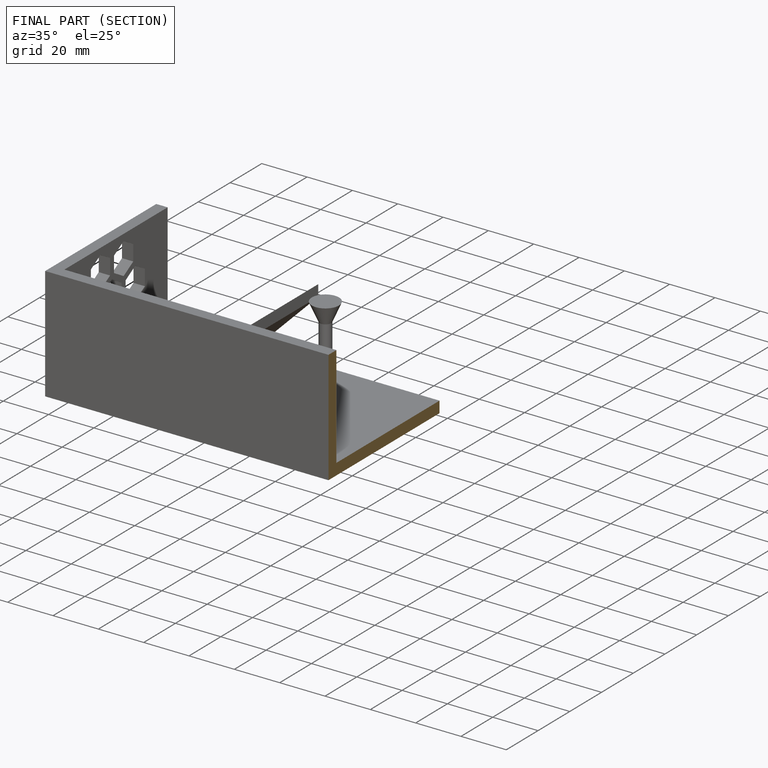
[diagram: finished part — half-section view (interior)]
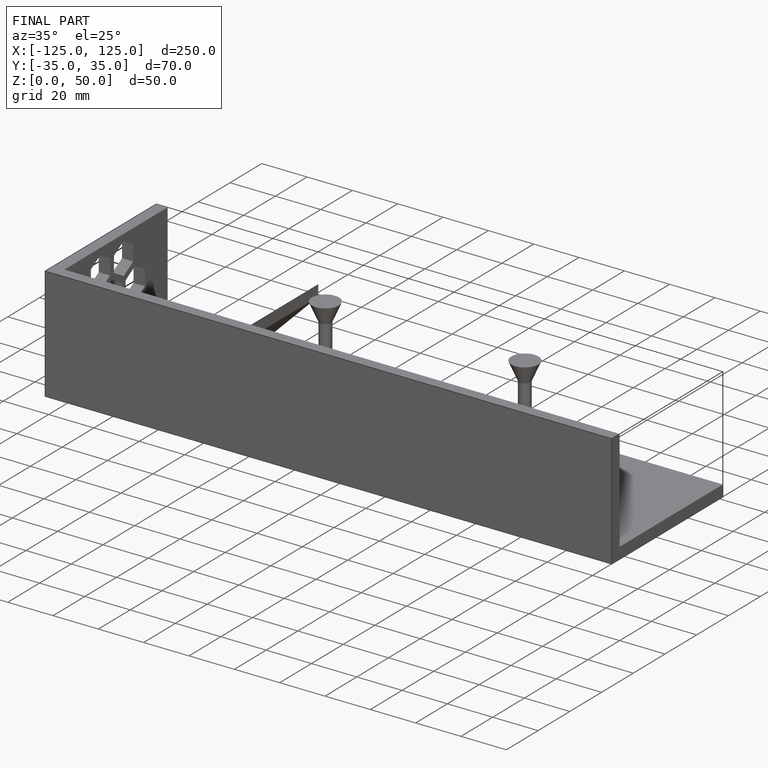
[diagram: finished part — iso view with bounding-box wireframe]
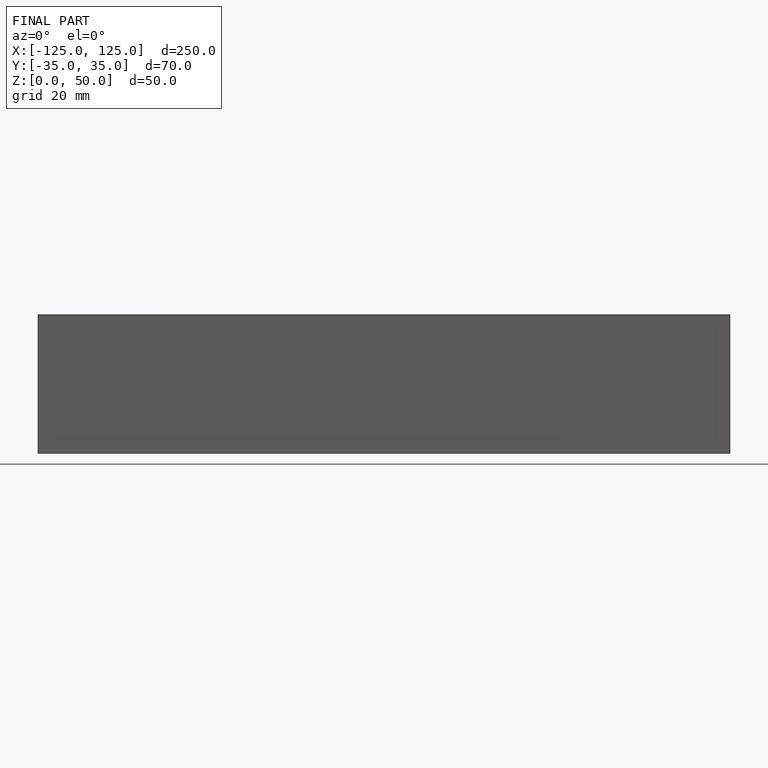
[diagram: finished part — front view with bounding-box wireframe]
